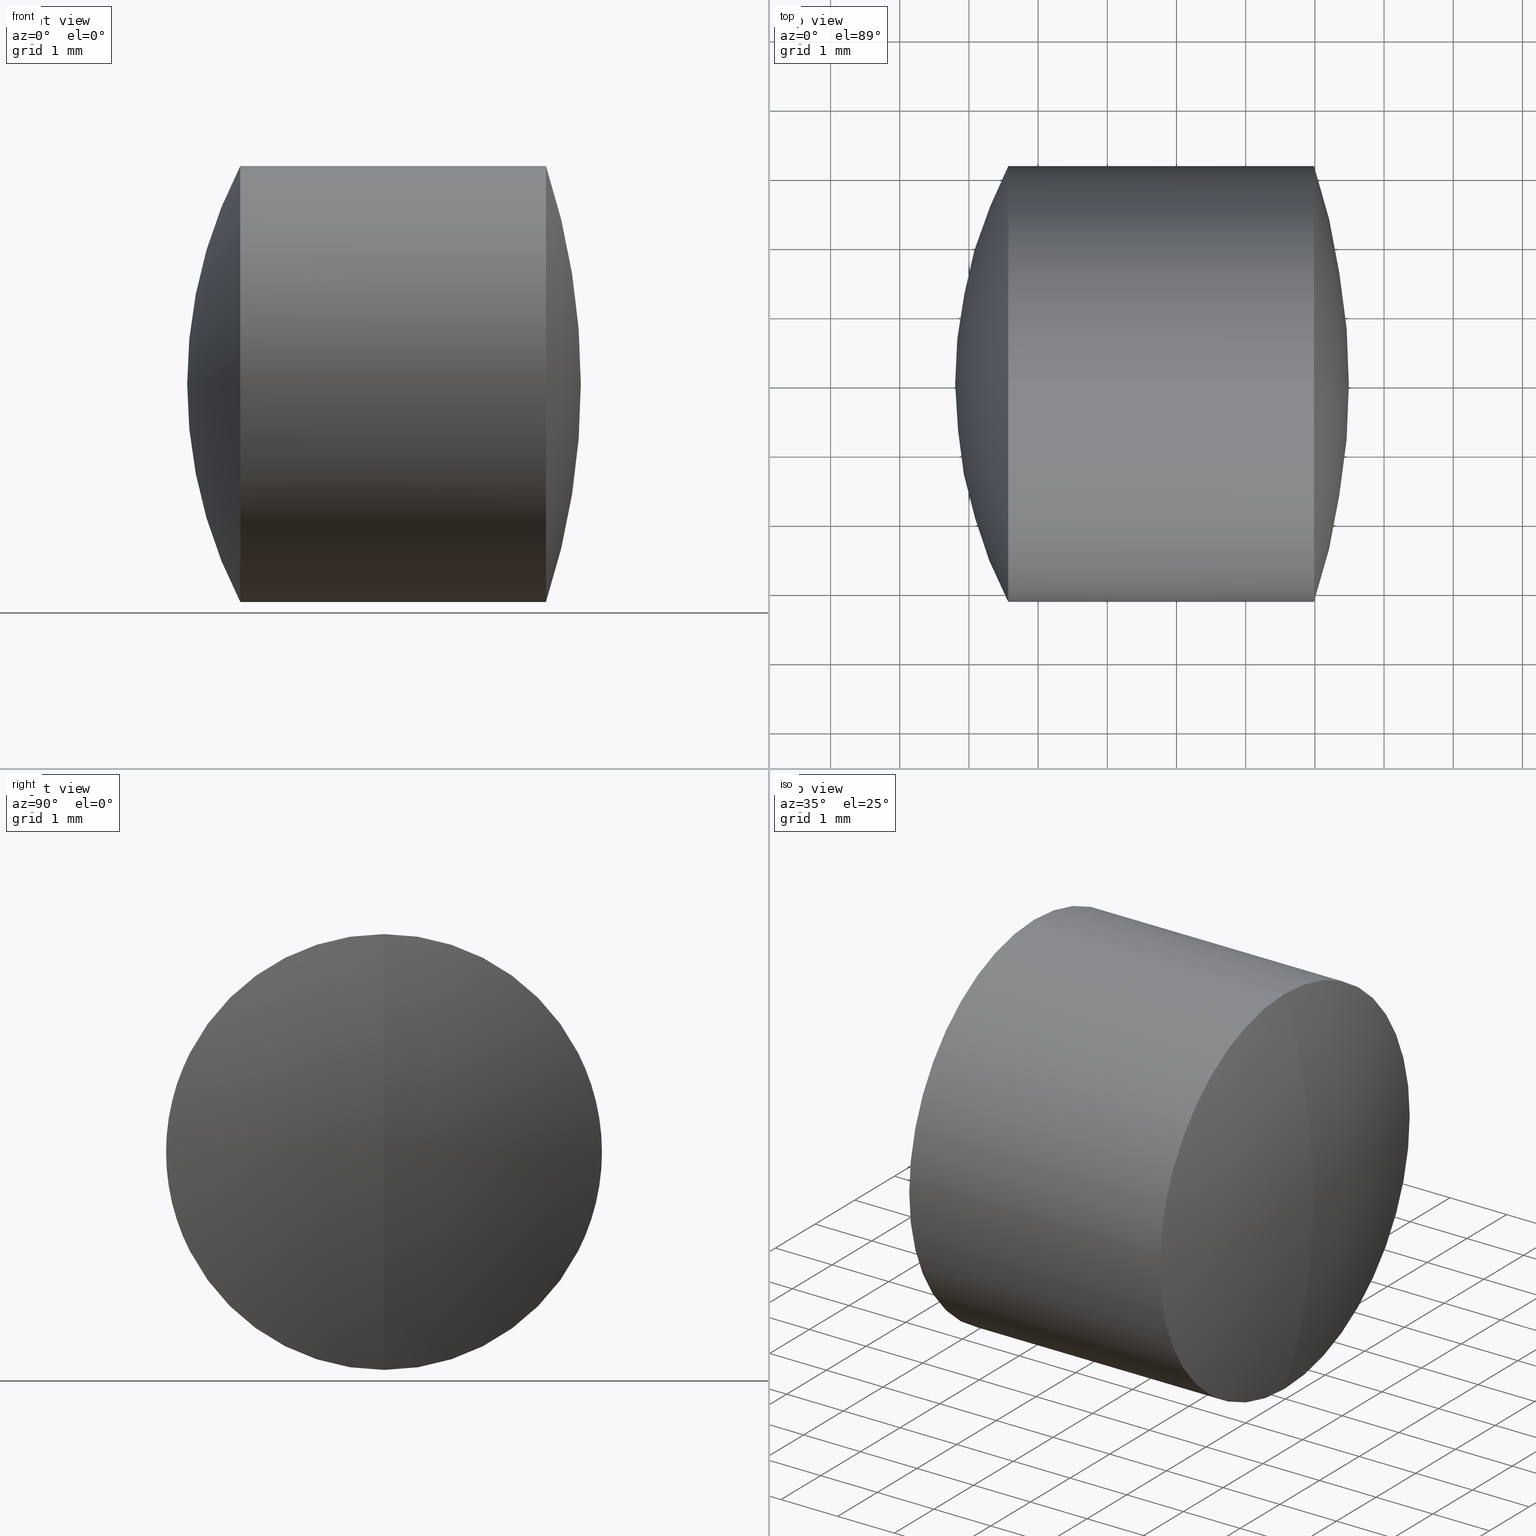
[diagram: canonical four-view strip — front | top / right | iso, engineering-drawing reading convention]
A machine part, canonical four-view strip (front | top / right | iso — engineering-drawing reading convention). The complete STEP part file that produces these views, byte-faithful:
ISO-10303-21;
HEADER;
FILE_DESCRIPTION (( 'STEP AP214' ),
    '1' );
FILE_NAME ('145008.STEP',
    '2019-05-08T03:49:58',
    ( 'user' ),
    ( '΢���й�' ),
    'SwSTEP 2.0',
    'SolidWorks 2016',
    '' );
FILE_SCHEMA (( 'AUTOMOTIVE_DESIGN' ));
ENDSEC;

DATA;
#1 = ORIENTED_EDGE ( 'NONE', *, *, #92, .T. ) ;
#2 = FILL_AREA_STYLE ('',( #301 ) ) ;
#3 = VERTEX_POINT ( 'NONE', #38 ) ;
#4 = CIRCLE ( 'NONE', #36, 4.146000000000013200 ) ;
#5 = DIRECTION ( 'NONE',  ( 0.0000000000000000000, 0.0000000000000000000, 1.000000000000000000 ) ) ;
#6 = ADVANCED_FACE ( 'NONE', ( #339 ), #50, .T. ) ;
#7 = AXIS2_PLACEMENT_3D ( 'NONE', #344, #178, #16 ) ;
#8 = ORIENTED_EDGE ( 'NONE', *, *, #229, .F. ) ;
#9 = AXIS2_PLACEMENT_3D ( 'NONE', #131, #325, #158 ) ;
#10 = ORIENTED_EDGE ( 'NONE', *, *, #256, .T. ) ;
#11 = SPHERICAL_SURFACE ( 'NONE', #324, 10.10000000000000000 ) ;
#12 = DIRECTION ( 'NONE',  ( 0.0000000000000000000, 1.000000000000000000, 0.0000000000000000000 ) ) ;
#13 = ORIENTED_EDGE ( 'NONE', *, *, #171, .T. ) ;
#14 = CARTESIAN_POINT ( 'NONE',  ( 1.094604339932686600, 0.0000000000000000000, -3.388131789017201400E-018 ) ) ;
#15 = FILL_AREA_STYLE ('',( #174 ) ) ;
#16 = DIRECTION ( 'NONE',  ( 0.0000000000000000000, 0.0000000000000000000, 1.000000000000000000 ) ) ;
#17 = VERTEX_POINT ( 'NONE', #340 ) ;
#18 = DIRECTION ( 'NONE',  ( -0.0000000000000000000, 1.000000000000000000, 1.224646799147353200E-016 ) ) ;
#19 = AXIS2_PLACEMENT_3D ( 'NONE', #151, #317, #152 ) ;
#20 = AXIS2_PLACEMENT_3D ( 'NONE', #134, #329, #161 ) ;
#21 = ORIENTED_EDGE ( 'NONE', *, *, #235, .T. ) ;
#22 = APPLICATION_CONTEXT ( 'automotive_design' ) ;
#23 = CARTESIAN_POINT ( 'NONE',  ( 2.568094163968829100, 0.0000000000000000000, 0.0000000000000000000 ) ) ;
#24 =( NAMED_UNIT ( * ) PLANE_ANGLE_UNIT ( ) SI_UNIT ( $, .RADIAN. ) );
#25 = DIRECTION ( 'NONE',  ( -1.000000000000000000, -0.0000000000000000000, -0.0000000000000000000 ) ) ;
#26 = PRODUCT_DEFINITION_CONTEXT ( 'detailed design', #22, 'design' ) ;
#27 = ADVANCED_FACE ( 'NONE', ( #125 ), #195, .T. ) ;
#28 = CARTESIAN_POINT ( 'NONE',  ( 3.790307587695710600, 0.0000000000000000000, 0.0000000000000000000 ) ) ;
#29 = EDGE_LOOP ( 'NONE', ( #278, #13, #95, #136 ) ) ;
#30 = PRESENTATION_STYLE_ASSIGNMENT (( #52 ) ) ;
#31 = AXIS2_PLACEMENT_3D ( 'NONE', #166, #226, #32 ) ;
#32 = DIRECTION ( 'NONE',  ( 0.0000000000000000000, -1.224646799147353200E-016, 1.000000000000000000 ) ) ;
#33 = CIRCLE ( 'NONE', #89, 4.146000000000013200 ) ;
#34 = VERTEX_POINT ( 'NONE', #313 ) ;
#35 = STYLED_ITEM ( 'NONE', ( #109 ), #91 ) ;
#36 = AXIS2_PLACEMENT_3D ( 'NONE', #78, #274, #105 ) ;
#37 = CARTESIAN_POINT ( 'NONE',  ( 3.790307587695710600, 0.0000000000000000000, 3.149999999999999900 ) ) ;
#38 = CARTESIAN_POINT ( 'NONE',  ( 7.490604339932700000, 0.0000000000000000000, 6.184466335694133100E-016 ) ) ;
#39 = CIRCLE ( 'NONE', #321, 3.149999999999999900 ) ;
#40 = DIRECTION ( 'NONE',  ( 0.0000000000000000000, 0.0000000000000000000, 1.000000000000000000 ) ) ;
#41 = SURFACE_STYLE_USAGE ( .BOTH. , #204 ) ;
#42 = LINE ( 'NONE', #137, #333 ) ;
#43 = DIRECTION ( 'NONE',  ( 0.0000000000000000000, 1.000000000000000000, 0.0000000000000000000 ) ) ;
#44 = AXIS2_PLACEMENT_3D ( 'NONE', #251, #83, #302 ) ;
#45 = DIRECTION ( 'NONE',  ( 0.0000000000000000000, 1.000000000000000000, 0.0000000000000000000 ) ) ;
#46 = VERTEX_POINT ( 'NONE', #290 ) ;
#47 = DIRECTION ( 'NONE',  ( 0.0000000000000000000, 0.0000000000000000000, 1.000000000000000000 ) ) ;
#48 = EDGE_CURVE ( 'NONE', #17, #46, #182, .T. ) ;
#49 = DIRECTION ( 'NONE',  ( 1.000000000000000000, 0.0000000000000000000, 0.0000000000000000000 ) ) ;
#50 = CYLINDRICAL_SURFACE ( 'NONE', #306, 3.149999999999999900 ) ;
#51 = DIRECTION ( 'NONE',  ( 0.0000000000000000000, 0.0000000000000000000, 1.000000000000000000 ) ) ;
#52 = SURFACE_STYLE_USAGE ( .BOTH. , #252 ) ;
#53 = DIRECTION ( 'NONE',  ( 0.0000000000000000000, 1.000000000000000000, 0.0000000000000000000 ) ) ;
#54 = LINE ( 'NONE', #163, #189 ) ;
#55 = ADVANCED_FACE ( 'NONE', ( #275 ), #265, .T. ) ;
#56 = PRESENTATION_LAYER_ASSIGNMENT (  '', '', ( #35 ) ) ;
#57 = DIRECTION ( 'NONE',  ( 0.0000000000000000000, -1.000000000000000000, 0.0000000000000000000 ) ) ;
#58 = DIRECTION ( 'NONE',  ( -1.000000000000000000, -0.0000000000000000000, -0.0000000000000000000 ) ) ;
#59 = AXIS2_PLACEMENT_3D ( 'NONE', #104, #210, #298 ) ;
#60 = FACE_OUTER_BOUND ( 'NONE', #307, .T. ) ;
#61 = VERTEX_POINT ( 'NONE', #37 ) ;
#62 = CIRCLE ( 'NONE', #116, 3.149999999999999900 ) ;
#63 = AXIS2_PLACEMENT_3D ( 'NONE', #186, #53, #280 ) ;
#64 = EDGE_LOOP ( 'NONE', ( #342, #100, #117, #119 ) ) ;
#65 = EDGE_CURVE ( 'NONE', #148, #17, #39, .T. ) ;
#66 = PRODUCT ( '145008', '145008', '', ( #212 ) ) ;
#67 = ORIENTED_EDGE ( 'NONE', *, *, #124, .F. ) ;
#68 = EDGE_LOOP ( 'NONE', ( #168, #312, #79 ) ) ;
#69 = LINE ( 'NONE', #245, #138 ) ;
#70 = DIRECTION ( 'NONE',  ( 0.0000000000000000000, 0.0000000000000000000, -1.000000000000000000 ) ) ;
#71 =( NAMED_UNIT ( * ) PLANE_ANGLE_UNIT ( ) SI_UNIT ( $, .RADIAN. ) );
#72 = DIRECTION ( 'NONE',  ( -1.000000000000000000, -0.0000000000000000000, -0.0000000000000000000 ) ) ;
#73 = UNCERTAINTY_MEASURE_WITH_UNIT (LENGTH_MEASURE( 1.000000000000000100E-005 ), #133, 'distance_accuracy_value', 'NONE');
#74 = CARTESIAN_POINT ( 'NONE',  ( 2.568094163968829100, 3.857637417314162200E-016, -3.149999999999999900 ) ) ;
#75 = ORIENTED_EDGE ( 'NONE', *, *, #194, .T. ) ;
#76 = DIRECTION ( 'NONE',  ( -1.000000000000000000, -0.0000000000000000000, -0.0000000000000000000 ) ) ;
#77 = AXIS2_PLACEMENT_3D ( 'NONE', #249, #81, #276 ) ;
#78 = CARTESIAN_POINT ( 'NONE',  ( 1.094604339932686600, 0.0000000000000000000, -3.388131789017201400E-018 ) ) ;
#79 = ORIENTED_EDGE ( 'NONE', *, *, #292, .F. ) ;
#80 = CARTESIAN_POINT ( 'NONE',  ( 0.0000000000000000000, 0.0000000000000000000, 0.0000000000000000000 ) ) ;
#81 = DIRECTION ( 'NONE',  ( 0.0000000000000000000, -1.000000000000000000, 0.0000000000000000000 ) ) ;
#82 =( NAMED_UNIT ( * ) PLANE_ANGLE_UNIT ( ) SI_UNIT ( $, .RADIAN. ) );
#83 = DIRECTION ( 'NONE',  ( 0.0000000000000000000, 1.000000000000000000, 0.0000000000000000000 ) ) ;
#84 = FILL_AREA_STYLE ('',( #254 ) ) ;
#85 = CARTESIAN_POINT ( 'NONE',  ( 6.986827555344063100, 3.857637417314162200E-016, -3.149999999999999500 ) ) ;
#86 = CIRCLE ( 'NONE', #338, 3.150000000000000400 ) ;
#87 = DIRECTION ( 'NONE',  ( 0.0000000000000000000, -1.224646799147353000E-016, 1.000000000000000000 ) ) ;
#88 = ADVANCED_FACE ( 'NONE', ( #60 ), #118, .F. ) ;
#89 = AXIS2_PLACEMENT_3D ( 'NONE', #142, #57, #279 ) ;
#90 = ORIENTED_EDGE ( 'NONE', *, *, #159, .F. ) ;
#91 = MANIFOLD_SOLID_BREP ( '��ת3', #196 ) ;
#92 = EDGE_CURVE ( 'NONE', #296, #145, #303, .T. ) ;
#93 = ORIENTED_EDGE ( 'NONE', *, *, #65, .T. ) ;
#94 = PRESENTATION_LAYER_ASSIGNMENT (  '', '', ( #289 ) ) ;
#95 = ORIENTED_EDGE ( 'NONE', *, *, #194, .F. ) ;
#96 = AXIS2_PLACEMENT_3D ( 'NONE', #347, #327, #47 ) ;
#97 = PRESENTATION_STYLE_ASSIGNMENT (( #328 ) ) ;
#98 = ADVANCED_BREP_SHAPE_REPRESENTATION ( '145008', ( #315, #91, #176 ), #232 ) ;
#99 = CARTESIAN_POINT ( 'NONE',  ( -0.5519199926577972300, 0.0000000000000000000, 0.0000000000000000000 ) ) ;
#100 = ORIENTED_EDGE ( 'NONE', *, *, #106, .T. ) ;
#101 = COLOUR_RGB ( '',1.000000000000000000, 1.000000000000000000, 1.000000000000000000 ) ;
#102 = DIRECTION ( 'NONE',  ( 0.0000000000000000000, 0.0000000000000000000, 1.000000000000000000 ) ) ;
#103 = AXIS2_PLACEMENT_3D ( 'NONE', #113, #282, #87 ) ;
#104 = CARTESIAN_POINT ( 'NONE',  ( -0.8160621761658039000, 0.0000000000000000000, 0.0000000000000000000 ) ) ;
#105 = DIRECTION ( 'NONE',  ( 0.0000000000000000000, -1.224646799147353000E-016, 1.000000000000000000 ) ) ;
#106 = EDGE_CURVE ( 'NONE', #34, #61, #262, .T. ) ;
#107 =( NAMED_UNIT ( * ) SI_UNIT ( $, .STERADIAN. ) SOLID_ANGLE_UNIT ( ) );
#108 = CARTESIAN_POINT ( 'NONE',  ( 3.790307587695709700, 0.0000000000000000000, 3.149999999999999900 ) ) ;
#109 = PRESENTATION_STYLE_ASSIGNMENT (( #41 ) ) ;
#110 = DIRECTION ( 'NONE',  ( -1.000000000000000000, -0.0000000000000000000, -0.0000000000000000000 ) ) ;
#111 = MECHANICAL_DESIGN_GEOMETRIC_PRESENTATION_REPRESENTATION (  '', ( #289 ), #129 ) ;
#112 = ADVANCED_FACE ( 'NONE', ( #228 ), #153, .T. ) ;
#113 = CARTESIAN_POINT ( 'NONE',  ( 1.094604339932686600, 0.0000000000000000000, -3.388131789017201400E-018 ) ) ;
#114 = CIRCLE ( 'NONE', #31, 6.847999999999999900 ) ;
#115 = CARTESIAN_POINT ( 'NONE',  ( -0.8160621761658039000, 0.0000000000000000000, 0.0000000000000000000 ) ) ;
#116 = AXIS2_PLACEMENT_3D ( 'NONE', #23, #218, #51 ) ;
#117 = ORIENTED_EDGE ( 'NONE', *, *, #229, .T. ) ;
#118 = SPHERICAL_SURFACE ( 'NONE', #19, 4.146000000000013200 ) ;
#119 = ORIENTED_EDGE ( 'NONE', *, *, #65, .F. ) ;
#120 = SPHERICAL_SURFACE ( 'NONE', #63, 4.146000000000013200 ) ;
#121 = AXIS2_PLACEMENT_3D ( 'NONE', #28, #188, #5 ) ;
#122 = SHAPE_DEFINITION_REPRESENTATION ( #173, #98 ) ;
#123 = UNCERTAINTY_MEASURE_WITH_UNIT (LENGTH_MEASURE( 1.000000000000000100E-005 ), #304, 'distance_accuracy_value', 'NONE');
#124 = EDGE_CURVE ( 'NONE', #3, #296, #330, .T. ) ;
#125 = FACE_OUTER_BOUND ( 'NONE', #175, .T. ) ;
#126 = VERTEX_POINT ( 'NONE', #295 ) ;
#127 = DIRECTION ( 'NONE',  ( -1.000000000000000000, -0.0000000000000000000, -0.0000000000000000000 ) ) ;
#128 = LINE ( 'NONE', #184, #336 ) ;
#129 =( GEOMETRIC_REPRESENTATION_CONTEXT ( 3 ) GLOBAL_UNCERTAINTY_ASSIGNED_CONTEXT ( ( #73 ) ) GLOBAL_UNIT_ASSIGNED_CONTEXT ( ( #133, #300, #107 ) ) REPRESENTATION_CONTEXT ( 'NONE', 'WORKASPACE' ) );
#130 = CARTESIAN_POINT ( 'NONE',  ( 1.094604339932686600, 0.0000000000000000000, -3.388131789017201400E-018 ) ) ;
#131 = CARTESIAN_POINT ( 'NONE',  ( 6.986827555344063100, 0.0000000000000000000, 0.0000000000000000000 ) ) ;
#132 = ORIENTED_EDGE ( 'NONE', *, *, #205, .T. ) ;
#133 =( LENGTH_UNIT ( ) NAMED_UNIT ( * ) SI_UNIT ( .MILLI., .METRE. ) );
#134 = CARTESIAN_POINT ( 'NONE',  ( 3.790307587695709700, 0.0000000000000000000, 0.0000000000000000000 ) ) ;
#135 = EDGE_LOOP ( 'NONE', ( #67, #230, #187 ) ) ;
#136 = ORIENTED_EDGE ( 'NONE', *, *, #214, .F. ) ;
#137 = CARTESIAN_POINT ( 'NONE',  ( -0.8160621761658039000, 0.0000000000000000000, 3.149999999999999900 ) ) ;
#138 = VECTOR ( 'NONE', #211, 1000.000000000000000 ) ;
#139 = DIRECTION ( 'NONE',  ( 0.0000000000000000000, 1.000000000000000000, 0.0000000000000000000 ) ) ;
#140 = ADVANCED_FACE ( 'NONE', ( #294 ), #11, .T. ) ;
#141 = PRESENTATION_LAYER_ASSIGNMENT (  '', '', ( #156 ) ) ;
#142 = CARTESIAN_POINT ( 'NONE',  ( 1.094604339932686600, 0.0000000000000000000, -3.388131789017201400E-018 ) ) ;
#143 = EDGE_CURVE ( 'NONE', #3, #145, #221, .T. ) ;
#144 = EDGE_LOOP ( 'NONE', ( #201, #21, #341, #8 ) ) ;
#145 = VERTEX_POINT ( 'NONE', #297 ) ;
#146 = CIRCLE ( 'NONE', #9, 3.149999999999999500 ) ;
#147 = FACE_OUTER_BOUND ( 'NONE', #64, .T. ) ;
#148 = VERTEX_POINT ( 'NONE', #74 ) ;
#149 = ORIENTED_EDGE ( 'NONE', *, *, #124, .T. ) ;
#150 = ORIENTED_EDGE ( 'NONE', *, *, #154, .F. ) ;
#151 = CARTESIAN_POINT ( 'NONE',  ( 1.094604339932686600, 0.0000000000000000000, -3.388131789017201400E-018 ) ) ;
#152 = DIRECTION ( 'NONE',  ( 0.0000000000000000000, 0.0000000000000000000, 1.000000000000000000 ) ) ;
#153 = SPHERICAL_SURFACE ( 'NONE', #288, 4.146000000000013200 ) ;
#154 = EDGE_CURVE ( 'NONE', #291, #216, #86, .T. ) ;
#155 = ORIENTED_EDGE ( 'NONE', *, *, #48, .F. ) ;
#156 = STYLED_ITEM ( 'NONE', ( #30 ), #315 ) ;
#157 = DIRECTION ( 'NONE',  ( 0.0000000000000000000, -1.000000000000000000, 0.0000000000000000000 ) ) ;
#158 = DIRECTION ( 'NONE',  ( 0.0000000000000000000, 0.0000000000000000000, 1.000000000000000000 ) ) ;
#159 = EDGE_CURVE ( 'NONE', #145, #296, #146, .T. ) ;
#160 = SURFACE_SIDE_STYLE ('',( #167 ) ) ;
#161 = DIRECTION ( 'NONE',  ( 0.0000000000000000000, 0.0000000000000000000, 1.000000000000000000 ) ) ;
#162 = CARTESIAN_POINT ( 'NONE',  ( 8.648604339932685300, 0.0000000000000000000, -5.419542352614500500E-019 ) ) ;
#163 = CARTESIAN_POINT ( 'NONE',  ( -0.8160621761658039000, 3.857637417314162700E-016, -3.149999999999999900 ) ) ;
#164 = ADVANCED_FACE ( 'NONE', ( #147 ), #203, .T. ) ;
#165 = ORIENTED_EDGE ( 'NONE', *, *, #48, .T. ) ;
#166 = CARTESIAN_POINT ( 'NONE',  ( 8.648604339932685300, 0.0000000000000000000, -5.419542352614500500E-019 ) ) ;
#167 = SURFACE_STYLE_FILL_AREA ( #2 ) ;
#168 = ORIENTED_EDGE ( 'NONE', *, *, #191, .F. ) ;
#169 = EDGE_CURVE ( 'NONE', #227, #34, #4, .T. ) ;
#170 = AXIS2_PLACEMENT_3D ( 'NONE', #115, #58, #222 ) ;
#171 = EDGE_CURVE ( 'NONE', #296, #291, #69, .T. ) ;
#172 = SURFACE_STYLE_FILL_AREA ( #15 ) ;
#173 = PRODUCT_DEFINITION_SHAPE ( 'NONE', 'NONE',  #198 ) ;
#174 = FILL_AREA_STYLE_COLOUR ( '', #335 ) ;
#175 = EDGE_LOOP ( 'NONE', ( #310, #309, #299 ) ) ;
#176 = AXIS2_PLACEMENT_3D ( 'NONE', #80, #248, #49 ) ;
#177 = FACE_OUTER_BOUND ( 'NONE', #287, .T. ) ;
#178 = DIRECTION ( 'NONE',  ( -1.000000000000000000, -0.0000000000000000000, -0.0000000000000000000 ) ) ;
#179 = CARTESIAN_POINT ( 'NONE',  ( -2.609395660067300100, 0.0000000000000000000, 0.0000000000000000000 ) ) ;
#180 = UNCERTAINTY_MEASURE_WITH_UNIT (LENGTH_MEASURE( 1.000000000000000100E-005 ), #220, 'distance_accuracy_value', 'NONE');
#181 = APPLICATION_PROTOCOL_DEFINITION ( 'draft international standard', 'automotive_design', 1998, #22 ) ;
#182 = CIRCLE ( 'NONE', #285, 6.847999999999999900 ) ;
#183 = APPLICATION_CONTEXT ( 'automotive_design' ) ;
#184 = CARTESIAN_POINT ( 'NONE',  ( -0.5519199926577972300, 0.0000000000000000000, 3.149999999999999900 ) ) ;
#185 =( NAMED_UNIT ( * ) SI_UNIT ( $, .STERADIAN. ) SOLID_ANGLE_UNIT ( ) );
#186 = CARTESIAN_POINT ( 'NONE',  ( 1.094604339932686600, 0.0000000000000000000, -3.388131789017201400E-018 ) ) ;
#187 = ORIENTED_EDGE ( 'NONE', *, *, #92, .F. ) ;
#188 = DIRECTION ( 'NONE',  ( -1.000000000000000000, -0.0000000000000000000, -0.0000000000000000000 ) ) ;
#189 = VECTOR ( 'NONE', #25, 1000.000000000000000 ) ;
#190 = ADVANCED_FACE ( 'NONE', ( #284 ), #197, .T. ) ;
#191 = EDGE_CURVE ( 'NONE', #227, #61, #281, .T. ) ;
#192 = MECHANICAL_DESIGN_GEOMETRIC_PRESENTATION_REPRESENTATION (  '', ( #156 ), #208 ) ;
#193 = SPHERICAL_SURFACE ( 'NONE', #259, 6.847999999999999900 ) ;
#194 = EDGE_CURVE ( 'NONE', #216, #291, #219, .T. ) ;
#195 = SPHERICAL_SURFACE ( 'NONE', #270, 4.146000000000013200 ) ;
#196 = CLOSED_SHELL ( 'NONE', ( #140, #190, #88, #253, #6, #224 ) ) ;
#197 = CYLINDRICAL_SURFACE ( 'NONE', #96, 3.149999999999999900 ) ;
#198 = PRODUCT_DEFINITION ( 'δ֪', '', #223, #26 ) ;
#199 = ORIENTED_EDGE ( 'NONE', *, *, #143, .F. ) ;
#200 = EDGE_LOOP ( 'NONE', ( #132, #10, #155 ) ) ;
#201 = ORIENTED_EDGE ( 'NONE', *, *, #292, .T. ) ;
#202 = DIRECTION ( 'NONE',  ( 0.0000000000000000000, -1.000000000000000000, 0.0000000000000000000 ) ) ;
#203 = CYLINDRICAL_SURFACE ( 'NONE', #59, 3.149999999999999900 ) ;
#204 = SURFACE_SIDE_STYLE ('',( #172 ) ) ;
#205 = EDGE_CURVE ( 'NONE', #17, #148, #62, .T. ) ;
#206 = DIRECTION ( 'NONE',  ( 0.0000000000000000000, -1.224646799147353200E-016, 1.000000000000000000 ) ) ;
#207 = MECHANICAL_DESIGN_GEOMETRIC_PRESENTATION_REPRESENTATION (  '', ( #35 ), #231 ) ;
#208 =( GEOMETRIC_REPRESENTATION_CONTEXT ( 3 ) GLOBAL_UNCERTAINTY_ASSIGNED_CONTEXT ( ( #180 ) ) GLOBAL_UNIT_ASSIGNED_CONTEXT ( ( #220, #24, #185 ) ) REPRESENTATION_CONTEXT ( 'NONE', 'WORKASPACE' ) );
#209 = CLOSED_SHELL ( 'NONE', ( #112, #305, #334, #55, #164, #27 ) ) ;
#210 = DIRECTION ( 'NONE',  ( -1.000000000000000000, -0.0000000000000000000, -0.0000000000000000000 ) ) ;
#211 = DIRECTION ( 'NONE',  ( -1.000000000000000000, -0.0000000000000000000, -0.0000000000000000000 ) ) ;
#212 = PRODUCT_CONTEXT ( 'NONE', #183, 'mechanical' ) ;
#213 = DIRECTION ( 'NONE',  ( -1.000000000000000000, -0.0000000000000000000, -0.0000000000000000000 ) ) ;
#214 = EDGE_CURVE ( 'NONE', #145, #216, #128, .T. ) ;
#215 = EDGE_LOOP ( 'NONE', ( #240, #1, #225, #150 ) ) ;
#216 = VERTEX_POINT ( 'NONE', #108 ) ;
#217 = APPLICATION_PROTOCOL_DEFINITION ( 'draft international standard', 'automotive_design', 1998, #183 ) ;
#218 = DIRECTION ( 'NONE',  ( -1.000000000000000000, -0.0000000000000000000, -0.0000000000000000000 ) ) ;
#219 = CIRCLE ( 'NONE', #20, 3.150000000000000400 ) ;
#220 =( LENGTH_UNIT ( ) NAMED_UNIT ( * ) SI_UNIT ( .MILLI., .METRE. ) );
#221 = CIRCLE ( 'NONE', #308, 10.10000000000000000 ) ;
#222 = DIRECTION ( 'NONE',  ( 0.0000000000000000000, 0.0000000000000000000, 1.000000000000000000 ) ) ;
#223 = PRODUCT_DEFINITION_FORMATION_WITH_SPECIFIED_SOURCE ( '�κ�', '', #66, .NOT_KNOWN. ) ;
#224 = ADVANCED_FACE ( 'NONE', ( #343 ), #267, .T. ) ;
#225 = ORIENTED_EDGE ( 'NONE', *, *, #214, .T. ) ;
#226 = DIRECTION ( 'NONE',  ( -0.0000000000000000000, 1.000000000000000000, 1.224646799147353200E-016 ) ) ;
#227 = VERTEX_POINT ( 'NONE', #332 ) ;
#228 = FACE_OUTER_BOUND ( 'NONE', #68, .T. ) ;
#229 = EDGE_CURVE ( 'NONE', #61, #17, #42, .T. ) ;
#230 = ORIENTED_EDGE ( 'NONE', *, *, #143, .T. ) ;
#231 =( GEOMETRIC_REPRESENTATION_CONTEXT ( 3 ) GLOBAL_UNCERTAINTY_ASSIGNED_CONTEXT ( ( #260 ) ) GLOBAL_UNIT_ASSIGNED_CONTEXT ( ( #237, #71, #268 ) ) REPRESENTATION_CONTEXT ( 'NONE', 'WORKASPACE' ) );
#232 =( GEOMETRIC_REPRESENTATION_CONTEXT ( 3 ) GLOBAL_UNCERTAINTY_ASSIGNED_CONTEXT ( ( #123 ) ) GLOBAL_UNIT_ASSIGNED_CONTEXT ( ( #304, #82, #250 ) ) REPRESENTATION_CONTEXT ( 'NONE', 'WORKASPACE' ) );
#233 = CARTESIAN_POINT ( 'NONE',  ( 8.648604339932685300, 0.0000000000000000000, -5.419542352614500500E-019 ) ) ;
#234 = ORIENTED_EDGE ( 'NONE', *, *, #277, .F. ) ;
#235 = EDGE_CURVE ( 'NONE', #34, #148, #54, .T. ) ;
#236 = DIRECTION ( 'NONE',  ( -1.000000000000000000, -0.0000000000000000000, -0.0000000000000000000 ) ) ;
#237 =( LENGTH_UNIT ( ) NAMED_UNIT ( * ) SI_UNIT ( .MILLI., .METRE. ) );
#238 = PRODUCT_RELATED_PRODUCT_CATEGORY ( 'part', '', ( #66 ) ) ;
#239 = CARTESIAN_POINT ( 'NONE',  ( 3.790307587695710600, 0.0000000000000000000, 0.0000000000000000000 ) ) ;
#240 = ORIENTED_EDGE ( 'NONE', *, *, #171, .F. ) ;
#241 = CYLINDRICAL_SURFACE ( 'NONE', #170, 3.149999999999999900 ) ;
#242 = EDGE_LOOP ( 'NONE', ( #199, #149, #90 ) ) ;
#243 = DIRECTION ( 'NONE',  ( 0.0000000000000000000, 0.0000000000000000000, 1.000000000000000000 ) ) ;
#244 = CARTESIAN_POINT ( 'NONE',  ( 3.790307587695709700, 0.0000000000000000000, 0.0000000000000000000 ) ) ;
#245 = CARTESIAN_POINT ( 'NONE',  ( -0.5519199926577972300, 3.857637417314162700E-016, -3.149999999999999900 ) ) ;
#246 = ORIENTED_EDGE ( 'NONE', *, *, #256, .F. ) ;
#247 = COLOUR_RGB ( '',1.000000000000000000, 1.000000000000000000, 1.000000000000000000 ) ;
#248 = DIRECTION ( 'NONE',  ( 0.0000000000000000000, 0.0000000000000000000, 1.000000000000000000 ) ) ;
#249 = CARTESIAN_POINT ( 'NONE',  ( 1.094604339932686600, 0.0000000000000000000, -3.388131789017201400E-018 ) ) ;
#250 =( NAMED_UNIT ( * ) SI_UNIT ( $, .STERADIAN. ) SOLID_ANGLE_UNIT ( ) );
#251 = CARTESIAN_POINT ( 'NONE',  ( -2.609395660067300100, 0.0000000000000000000, 0.0000000000000000000 ) ) ;
#252 = SURFACE_SIDE_STYLE ('',( #311 ) ) ;
#253 = ADVANCED_FACE ( 'NONE', ( #177 ), #120, .F. ) ;
#254 = FILL_AREA_STYLE_COLOUR ( '', #101 ) ;
#255 = CIRCLE ( 'NONE', #121, 3.149999999999999900 ) ;
#256 = EDGE_CURVE ( 'NONE', #148, #46, #114, .T. ) ;
#257 = CARTESIAN_POINT ( 'NONE',  ( 3.790307587695709700, 3.857637417314162200E-016, -3.149999999999999900 ) ) ;
#258 = AXIS2_PLACEMENT_3D ( 'NONE', #239, #72, #269 ) ;
#259 = AXIS2_PLACEMENT_3D ( 'NONE', #162, #139, #331 ) ;
#260 = UNCERTAINTY_MEASURE_WITH_UNIT (LENGTH_MEASURE( 1.000000000000000100E-005 ), #237, 'distance_accuracy_value', 'NONE');
#261 = EDGE_CURVE ( 'NONE', #126, #216, #33, .T. ) ;
#262 = CIRCLE ( 'NONE', #258, 3.149999999999999900 ) ;
#263 = FACE_OUTER_BOUND ( 'NONE', #144, .T. ) ;
#264 = DIRECTION ( 'NONE',  ( 0.0000000000000000000, 1.000000000000000000, 0.0000000000000000000 ) ) ;
#265 = SPHERICAL_SURFACE ( 'NONE', #337, 6.847999999999999900 ) ;
#266 = DIRECTION ( 'NONE',  ( 0.0000000000000000000, 0.0000000000000000000, 1.000000000000000000 ) ) ;
#267 = SPHERICAL_SURFACE ( 'NONE', #44, 10.10000000000000000 ) ;
#268 =( NAMED_UNIT ( * ) SI_UNIT ( $, .STERADIAN. ) SOLID_ANGLE_UNIT ( ) );
#269 = DIRECTION ( 'NONE',  ( 0.0000000000000000000, 0.0000000000000000000, 1.000000000000000000 ) ) ;
#270 = AXIS2_PLACEMENT_3D ( 'NONE', #14, #12, #286 ) ;
#271 = AXIS2_PLACEMENT_3D ( 'NONE', #179, #18, #206 ) ;
#272 = FACE_OUTER_BOUND ( 'NONE', #200, .T. ) ;
#273 = DIRECTION ( 'NONE',  ( 0.0000000000000000000, 0.0000000000000000000, 1.000000000000000000 ) ) ;
#274 = DIRECTION ( 'NONE',  ( -0.0000000000000000000, 1.000000000000000000, 1.224646799147353200E-016 ) ) ;
#275 = FACE_OUTER_BOUND ( 'NONE', #322, .T. ) ;
#276 = DIRECTION ( 'NONE',  ( 0.0000000000000000000, 0.0000000000000000000, -1.000000000000000000 ) ) ;
#277 = EDGE_CURVE ( 'NONE', #126, #291, #320, .T. ) ;
#278 = ORIENTED_EDGE ( 'NONE', *, *, #159, .T. ) ;
#279 = DIRECTION ( 'NONE',  ( 0.0000000000000000000, 0.0000000000000000000, -1.000000000000000000 ) ) ;
#280 = DIRECTION ( 'NONE',  ( 0.0000000000000000000, 0.0000000000000000000, 1.000000000000000000 ) ) ;
#281 = CIRCLE ( 'NONE', #77, 4.146000000000013200 ) ;
#282 = DIRECTION ( 'NONE',  ( -0.0000000000000000000, 1.000000000000000000, 1.224646799147353200E-016 ) ) ;
#283 = ORIENTED_EDGE ( 'NONE', *, *, #261, .T. ) ;
#284 = FACE_OUTER_BOUND ( 'NONE', #29, .T. ) ;
#285 = AXIS2_PLACEMENT_3D ( 'NONE', #233, #202, #70 ) ;
#286 = DIRECTION ( 'NONE',  ( 0.0000000000000000000, 0.0000000000000000000, 1.000000000000000000 ) ) ;
#287 = EDGE_LOOP ( 'NONE', ( #234, #283, #75 ) ) ;
#288 = AXIS2_PLACEMENT_3D ( 'NONE', #130, #43, #102 ) ;
#289 = STYLED_ITEM ( 'NONE', ( #97 ), #98 ) ;
#290 = CARTESIAN_POINT ( 'NONE',  ( 1.800604339932685200, 0.0000000000000000000, 4.187771097927922700E-016 ) ) ;
#291 = VERTEX_POINT ( 'NONE', #257 ) ;
#292 = EDGE_CURVE ( 'NONE', #61, #34, #255, .T. ) ;
#293 = CARTESIAN_POINT ( 'NONE',  ( 2.568094163968829100, 0.0000000000000000000, 0.0000000000000000000 ) ) ;
#294 = FACE_OUTER_BOUND ( 'NONE', #242, .T. ) ;
#295 = CARTESIAN_POINT ( 'NONE',  ( 5.240604339932699100, 0.0000000000000000000, 2.504811496742299000E-016 ) ) ;
#296 = VERTEX_POINT ( 'NONE', #85 ) ;
#297 = CARTESIAN_POINT ( 'NONE',  ( 6.986827555344063100, 0.0000000000000000000, 3.149999999999999500 ) ) ;
#298 = DIRECTION ( 'NONE',  ( 0.0000000000000000000, 0.0000000000000000000, 1.000000000000000000 ) ) ;
#299 = ORIENTED_EDGE ( 'NONE', *, *, #106, .F. ) ;
#300 =( NAMED_UNIT ( * ) PLANE_ANGLE_UNIT ( ) SI_UNIT ( $, .RADIAN. ) );
#301 = FILL_AREA_STYLE_COLOUR ( '', #247 ) ;
#302 = DIRECTION ( 'NONE',  ( 0.0000000000000000000, 0.0000000000000000000, 1.000000000000000000 ) ) ;
#303 = CIRCLE ( 'NONE', #7, 3.149999999999999500 ) ;
#304 =( LENGTH_UNIT ( ) NAMED_UNIT ( * ) SI_UNIT ( .MILLI., .METRE. ) );
#305 = ADVANCED_FACE ( 'NONE', ( #263 ), #241, .T. ) ;
#306 = AXIS2_PLACEMENT_3D ( 'NONE', #99, #236, #40 ) ;
#307 = EDGE_LOOP ( 'NONE', ( #319, #326, #316 ) ) ;
#308 = AXIS2_PLACEMENT_3D ( 'NONE', #323, #157, #346 ) ;
#309 = ORIENTED_EDGE ( 'NONE', *, *, #191, .T. ) ;
#310 = ORIENTED_EDGE ( 'NONE', *, *, #169, .F. ) ;
#311 = SURFACE_STYLE_FILL_AREA ( #84 ) ;
#312 = ORIENTED_EDGE ( 'NONE', *, *, #169, .T. ) ;
#313 = CARTESIAN_POINT ( 'NONE',  ( 3.790307587695710600, 3.857637417314162700E-016, -3.149999999999999900 ) ) ;
#314 = CARTESIAN_POINT ( 'NONE',  ( 8.648604339932685300, 0.0000000000000000000, -5.419542352614500500E-019 ) ) ;
#315 = MANIFOLD_SOLID_BREP ( '��ת1', #209 ) ;
#316 = ORIENTED_EDGE ( 'NONE', *, *, #154, .T. ) ;
#317 = DIRECTION ( 'NONE',  ( 0.0000000000000000000, 1.000000000000000000, 0.0000000000000000000 ) ) ;
#318 = DIRECTION ( 'NONE',  ( 0.0000000000000000000, 0.0000000000000000000, 1.000000000000000000 ) ) ;
#319 = ORIENTED_EDGE ( 'NONE', *, *, #261, .F. ) ;
#320 = CIRCLE ( 'NONE', #103, 4.146000000000013200 ) ;
#321 = AXIS2_PLACEMENT_3D ( 'NONE', #293, #127, #318 ) ;
#322 = EDGE_LOOP ( 'NONE', ( #246, #93, #165 ) ) ;
#323 = CARTESIAN_POINT ( 'NONE',  ( -2.609395660067300100, 0.0000000000000000000, 0.0000000000000000000 ) ) ;
#324 = AXIS2_PLACEMENT_3D ( 'NONE', #345, #45, #243 ) ;
#325 = DIRECTION ( 'NONE',  ( -1.000000000000000000, -0.0000000000000000000, -0.0000000000000000000 ) ) ;
#326 = ORIENTED_EDGE ( 'NONE', *, *, #277, .T. ) ;
#327 = DIRECTION ( 'NONE',  ( -1.000000000000000000, -0.0000000000000000000, -0.0000000000000000000 ) ) ;
#328 = SURFACE_STYLE_USAGE ( .BOTH. , #160 ) ;
#329 = DIRECTION ( 'NONE',  ( -1.000000000000000000, -0.0000000000000000000, -0.0000000000000000000 ) ) ;
#330 = CIRCLE ( 'NONE', #271, 10.10000000000000000 ) ;
#331 = DIRECTION ( 'NONE',  ( 0.0000000000000000000, 0.0000000000000000000, 1.000000000000000000 ) ) ;
#332 = CARTESIAN_POINT ( 'NONE',  ( 5.240604339932699100, 0.0000000000000000000, 2.504811496742299000E-016 ) ) ;
#333 = VECTOR ( 'NONE', #110, 1000.000000000000000 ) ;
#334 = ADVANCED_FACE ( 'NONE', ( #272 ), #193, .T. ) ;
#335 = COLOUR_RGB ( '',1.000000000000000000, 1.000000000000000000, 1.000000000000000000 ) ;
#336 = VECTOR ( 'NONE', #213, 1000.000000000000000 ) ;
#337 = AXIS2_PLACEMENT_3D ( 'NONE', #314, #264, #266 ) ;
#338 = AXIS2_PLACEMENT_3D ( 'NONE', #244, #76, #273 ) ;
#339 = FACE_OUTER_BOUND ( 'NONE', #215, .T. ) ;
#340 = CARTESIAN_POINT ( 'NONE',  ( 2.568094163968829100, 0.0000000000000000000, 3.149999999999999900 ) ) ;
#341 = ORIENTED_EDGE ( 'NONE', *, *, #205, .F. ) ;
#342 = ORIENTED_EDGE ( 'NONE', *, *, #235, .F. ) ;
#343 = FACE_OUTER_BOUND ( 'NONE', #135, .T. ) ;
#344 = CARTESIAN_POINT ( 'NONE',  ( 6.986827555344063100, 0.0000000000000000000, 0.0000000000000000000 ) ) ;
#345 = CARTESIAN_POINT ( 'NONE',  ( -2.609395660067300100, 0.0000000000000000000, 0.0000000000000000000 ) ) ;
#346 = DIRECTION ( 'NONE',  ( 0.0000000000000000000, 0.0000000000000000000, -1.000000000000000000 ) ) ;
#347 = CARTESIAN_POINT ( 'NONE',  ( -0.5519199926577972300, 0.0000000000000000000, 0.0000000000000000000 ) ) ;
ENDSEC;
END-ISO-10303-21;
